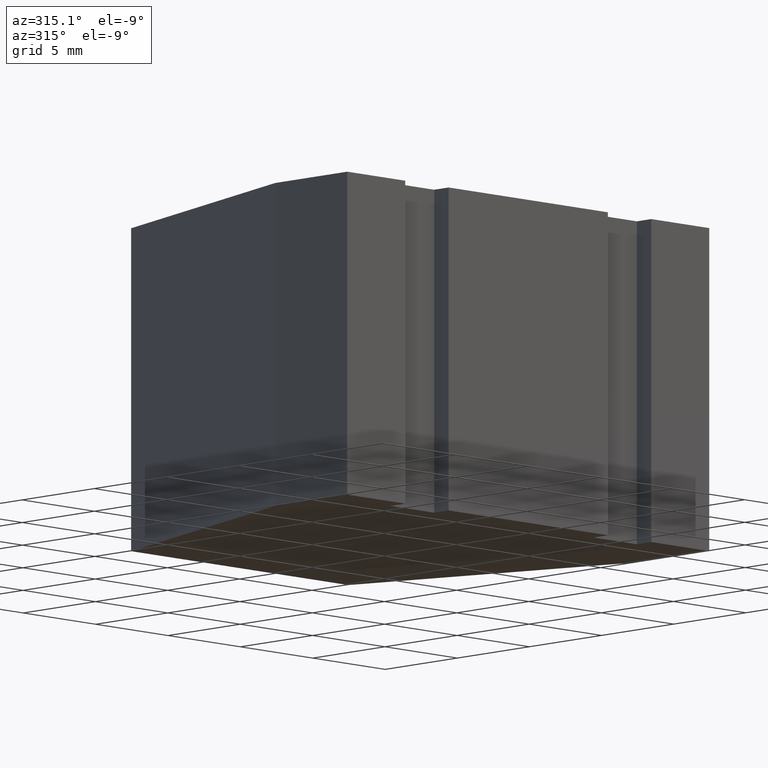
[diagram: clean part render]
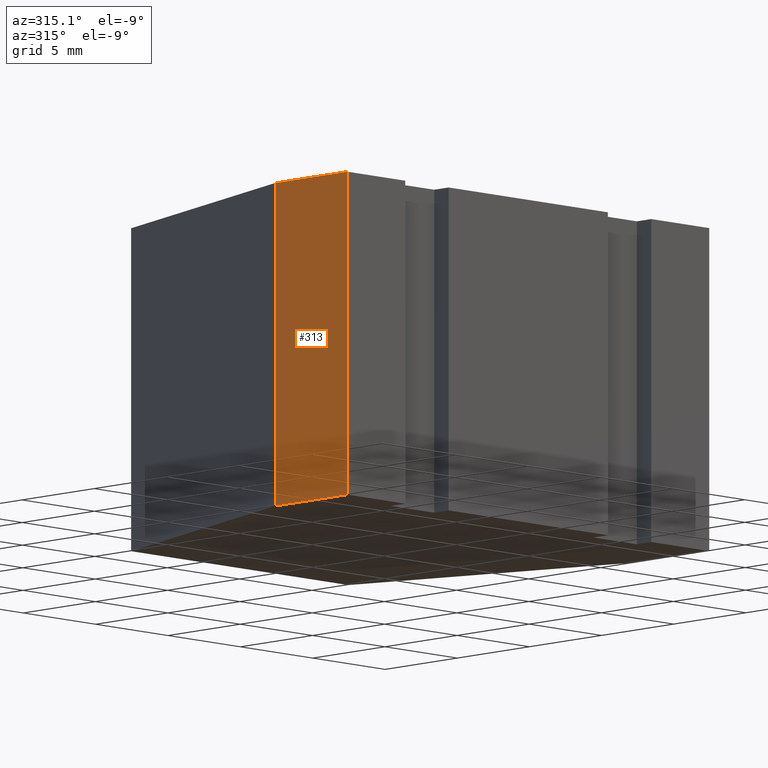
[diagram: same view with one face highlighted and labeled with its STEP entity id]
A machine part, auxiliary view. The second image highlights one B-rep face of the part: STEP entity #313.
In plain terms, the highlighted planar face has unit normal (-1, 0, 0).
Its self-contained STEP definition (entity closure, byte-faithful):
#27=FACE_OUTER_BOUND('',#43,.T.);
#43=EDGE_LOOP('',(#250,#251,#252,#253));
#60=LINE('',#459,#102);
#80=LINE('',#498,#122);
#81=LINE('',#501,#123);
#82=LINE('',#502,#124);
#102=VECTOR('',#373,10.);
#122=VECTOR('',#409,10.);
#123=VECTOR('',#412,10.);
#124=VECTOR('',#413,10.);
#144=VERTEX_POINT('',#456);
#145=VERTEX_POINT('',#458);
#156=VERTEX_POINT('',#496);
#157=VERTEX_POINT('',#500);
#172=EDGE_CURVE('',#145,#144,#60,.T.);
#192=EDGE_CURVE('',#156,#144,#80,.T.);
#193=EDGE_CURVE('',#156,#157,#81,.T.);
#194=EDGE_CURVE('',#157,#145,#82,.T.);
#250=ORIENTED_EDGE('',*,*,#193,.T.);
#251=ORIENTED_EDGE('',*,*,#194,.T.);
#252=ORIENTED_EDGE('',*,*,#172,.T.);
#253=ORIENTED_EDGE('',*,*,#192,.F.);
#297=PLANE('',#352);
#313=ADVANCED_FACE('',(#27),#297,.T.);
#352=AXIS2_PLACEMENT_3D('',#499,#410,#411);
#373=DIRECTION('',(0.,-1.,0.));
#409=DIRECTION('',(0.,0.,-1.));
#410=DIRECTION('center_axis',(-1.,0.,0.));
#411=DIRECTION('ref_axis',(0.,0.,1.));
#412=DIRECTION('',(0.,1.,0.));
#413=DIRECTION('',(0.,0.,-1.));
#456=CARTESIAN_POINT('',(-12.5,0.,-8.));
#458=CARTESIAN_POINT('',(-12.5,5.,-8.));
#459=CARTESIAN_POINT('',(-12.5,0.,-8.));
#496=CARTESIAN_POINT('',(-12.5,0.,8.));
#498=CARTESIAN_POINT('',(-12.5,0.,0.));
#499=CARTESIAN_POINT('Origin',(-12.5,0.,0.));
#500=CARTESIAN_POINT('',(-12.5,5.,8.));
#501=CARTESIAN_POINT('',(-12.5,0.,8.));
#502=CARTESIAN_POINT('',(-12.5,5.,0.));